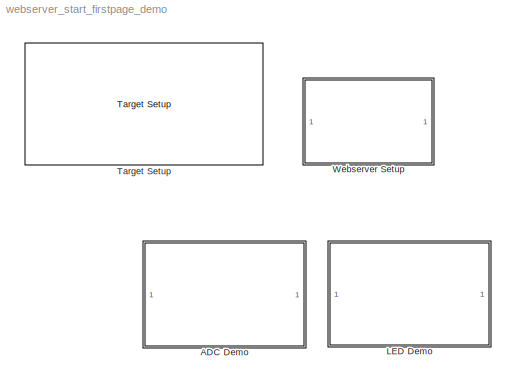
MODEL webserver_start_firstpage_demo
KIND model
CONFIG PreLoadFcn = waijung.modelPreload; % Required for working with Waijung Blockset. Do not remove.
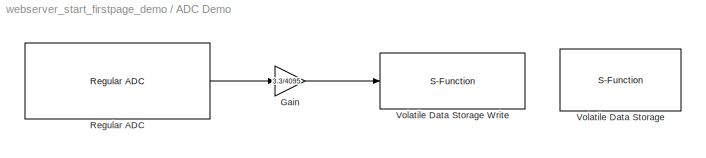
BLOCK [SubSystem] ADC Demo
  FunctionWithSeparateData = off
  MaskHideContents = off
  MinAlgLoopOccurrences = off
  Opaque = off
  Ports = []
  PropExecContextOutsideSubsystem = off
  RTWSystemCode = Auto
  RequestExecContextInheritance = off
BLOCK [Gain] ADC Demo/Gain
  Gain = 3.3/4095
  OutDataType = fixdt(1, 16)
  OutDataTypeMode = Inherit via internal rule
  OutDataTypeStr = Inherit: Inherit via internal rule
  OutScaling = 2^0
  ParamDataTypeStr = Inherit: Inherit via internal rule
  ParameterDataType = fixdt(1, 16)
  ParameterDataTypeMode = Inherit via internal rule
  ParameterScaling = 2^0
  SaturateOnIntegerOverflow = off
BLOCK [Reference] ADC Demo/Regular ADC  REF=stm32f4_adc_lib/Regular ADC
  Ports = [0, 1]
  SourceBlock = stm32f4_adc_lib/Regular ADC
  SourceType = stm32f4_regular_adc
  adcmodule = 1
  blockid = ADCDemoRegularADC
  chsamplingtime = Auto
  chsamplingtimestr = ADC_SampleTime_480Cycles
  cinputportlabel = 0
  coutputportlabel = Out1, Out2
  enablecustomportlabel = off
  outputdatatype = Single
  pinstr = GPIO_Pin_9
  prescaler = 2
  prescalerstr = ADC_Prescaler_Div2
  read_an0 = off
  read_an1 = off
  read_an10 = off
  read_an11 = off
  read_an12 = off
  read_an13 = off
  read_an14 = off
  read_an15 = off
  read_an16 = off
  read_an17 = off
  read_an18 = off
  read_an2 = off
  read_an3 = off
  read_an4 = off
  read_an5 = off
  read_an6 = off
  read_an7 = off
  read_an8 = off
  read_an9 = on
  sampletime = -1
  usedpinarray = [0  0  0  0  0  0  0  0  0  1  0  0  0  0  0  0  0  0  0]
  usedpinidarray = [1]
  usedpinidcount = 1
  usedportidarray = [1]
BLOCK [S-Function] ADC Demo/Volatile Data Storage
  EnableBusSupport = off
  FunctionName = waijung_vdata_storage
  MaskCallbackString = waijung_vdata_storage_callback('storagetype');||waijung_vdata_storage_callback('storagename');|waijung_vdata_storage_callback('initval');|waijung_vdata_storage_callback('varname');||waijung_vdata_storage_callback('initvalstring');|waijung_vdata_storage_callback('webintegration');|waijung_vdata_storage_callback('weboutputformat');|||waijung_vdata_storage_callback('sampletime');|waijung_vdata_storag...<+72ch>  <repeated x4 — deduplicated; at blocks: Volatile Data Storage, Volatile Data Storage1, Volatile Data Storage2, Volatile Data Storage3>
  MaskDescription = This block implements a volatile Data Storage.\n\nWeb CGI varset/varget integratiopn:\nEnable - In webserver application, allow remote access via http.\nDisable - Variable is use in local only.  <repeated x4 — deduplicated; at blocks: Volatile Data Storage, Volatile Data Storage1, Volatile Data Storage2, Volatile Data Storage3>
  MaskDisplay = text(0.5, 0.5, 'Name: adc1\\nType: single','ver','middle','hor','center')
  MaskEnableString = on,on,on,on,off,on,on,on,on,off,on,on,off,off,on
  MaskHelp = web(fullfile(waijungdocroot,'Volatile_Data_Storage.htm'))
  MaskIconFrame = on
  MaskIconOpaque = on
  MaskIconRotate = none
  MaskIconUnits = normalized
  MaskInitialization = waijung_vdata_storage_callback('init');
  MaskPortRotate = default
  MaskPromptString = Storage Type|Define with \"volatile\" keyword|Storage Name (must be a valid variable name)|Initial value (Apply at Power on Reset only)|Variable name|Size (bytes)|Initial value (Apply at Power on Reset only)|Web CGI varget/varset integration|Web CGI varget output format|Web CGI varset callback|Last selected Storage Type|Sample time (sec)|Compiled sample time (sec) in string|BlockID|Type string  <repeated x4 — deduplicated; at blocks: Volatile Data Storage, Volatile Data Storage1, Volatile Data Storage2, Volatile Data Storage3>
  MaskSelfModifiable = on
  MaskStyleString = popup(double|single|uint32|int32|uint16|int16|uint8|int8|string),checkbox,edit,edit,edit,edit,edit,popup(Disable|ReadOnly|Write/ Read|ReadOnly with KeyValuePair|Write/ Read with KeyValuePair),edit,edit,popup(double|single|uint32|int32|uint16|int16|uint8|int8|string),edit,edit,edit,edit  <repeated x4 — deduplicated; at blocks: Volatile Data Storage, Volatile Data Storage1, Volatile Data Storage2, Volatile Data Storage3>
  MaskTabNameString = ,,,,,,,,,,,,,,
  MaskToolTipString = on,on,on,on,on,on,on,on,on,on,on,on,on,on,on
  MaskTunableValueString = off,off,off,off,off,off,off,off,off,off,off,off,off,off,off
  MaskType = waijung_vdata_storage
  MaskValueString = single|off|adc1|0|ADCDemoVolatileDataStorage_adc1|64|'Initial string'|ReadOnly|'%f'|(void*)0|single|-1|0.01|ADCDemoVolatileDataStorage|float
  MaskVarAliasString = ,,,,,,,,,,,,,,
  MaskVariables = storagetype=&1;definevolatile=&2;storagename=&3;initval=@4;varname=&5;buffersize=@6;initvalstring=@7;webintegration=&8;weboutputformat=&9;webcgicallback=&10;laststoragetype=&11;sampletime=@12;sampletimestr=&13;blockid=&14;storagetypestr=&15;  <repeated x4 — deduplicated; at blocks: Volatile Data Storage, Volatile Data Storage1, Volatile Data Storage2, Volatile Data Storage3>
  MaskVisibilityString = on,on,on,on,off,off,off,on,on,off,off,on,off,off,off
  Parameters = storagetype,storagename,initval,varname,buffersize,initvalstring,sampletime,sampletimestr,blockid,storagetypestr
  Ports = []
BLOCK [S-Function] ADC Demo/Volatile Data Storage Write
  EnableBusSupport = off
  FunctionName = waijung_vdata_write
  MaskCallbackString = waijung_vdata_write_callback('storagename');|waijung_vdata_write_callback('varname');|waijung_vdata_write_callback('sampletime');|waijung_vdata_write_callback('sampletimestr');|waijung_vdata_write_callback('blockid');|waijung_vdata_write_callback('storagetype');|
  MaskDescription = This block implements write data to a buffer.
  MaskDisplay = text(0.95, 0.5, 'Buffer: adc1','ver','middle','hor','right');port_label('input',1,'D1(single)')
  MaskEnableString = on,off,on,off,off,on,on
  MaskHelp = web(fullfile(waijungdocroot,'Volatile_Data_Storage_Write.htm'))
  MaskIconFrame = on
  MaskIconOpaque = on
  MaskIconRotate = none
  MaskIconUnits = normalized
  MaskInitialization = waijung_vdata_write_callback('init');
  MaskPortRotate = default
  MaskPromptString = Storage Name|Variable name|Sample time (sec)|Compiled sample time (sec) in string|BlockID|Data type|Data type string
  MaskSelfModifiable = on
  MaskStyleString = popup(adc1|led1|led2|led3),edit,edit,edit,edit,edit,edit
  MaskTabNameString = ,,,,,,
  MaskToolTipString = on,on,on,on,on,on,on
  MaskTunableValueString = off,off,off,off,off,off,off
  MaskType = waijung_vdata_write
  MaskValueString = adc1|ADCDemoVolatileDataStorage_adc1|-1|0.01|ADCDemoVolatileDataStorageWrite|single|float
  MaskVarAliasString = ,,,,,,
  MaskVariables = storagename=&1;varname=&2;sampletime=@3;sampletimestr=&4;blockid=&5;storagetype=&6;storagetypestr=&7;
  MaskVisibilityString = on,off,on,off,off,off,off
  Parameters = storagename,varname,sampletime,sampletimestr,blockid,storagetype,storagetypestr
  Ports = [1]
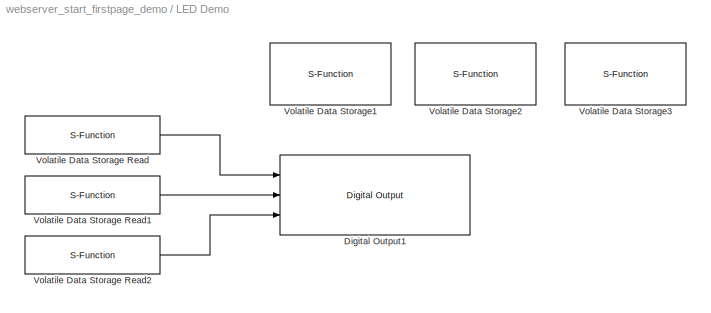
BLOCK [SubSystem] LED Demo
  FunctionWithSeparateData = off
  MaskHideContents = off
  MinAlgLoopOccurrences = off
  Opaque = off
  Ports = []
  PropExecContextOutsideSubsystem = off
  RTWSystemCode = Auto
  RequestExecContextInheritance = off
BLOCK [Reference] LED Demo/Digital Output1  REF=stm32f4_io_lib/Digital Output
  Ports = [3]
  SourceBlock = stm32f4_io_lib/Digital Output
  SourceType = stm32f4_digital_output
  bitbandingstr = \n#define LEDDemoDigitalOutput1_B0 Peripheral_BB(GPIOB->ODR, 0)  /* Output pin */\n#define LEDDemoDigitalOutput1_B7 Peripheral_BB(GPIOB->ODR, 7)  /* Output pin */\n#define LEDDemoDigitalOutput1_B14 Peripheral_BB(GPIOB->ODR, 14)  /* Output pin */
  blockid = LEDDemoDigitalOutput1
  cinputportlabel = In1, In2
  coutputportlabel = 0
  enablecustomportlabel = off
  globalinit = off
  pinstr = GPIO_Pin_0 | GPIO_Pin_7 | GPIO_Pin_14
  port = B
  porttype = Push Pull
  porttypestr = PP
  sampletime = -1
  sampletimestr = 0.01
  speed = 100
  use_bitband = on
  use_pin0 = on
  use_pin1 = off
  use_pin10 = off
  use_pin11 = off
  use_pin12 = off
  use_pin13 = off
  use_pin14 = on
  use_pin15 = off
  use_pin2 = off
  use_pin3 = off
  use_pin4 = off
  use_pin5 = off
  use_pin6 = off
  use_pin7 = on
  use_pin8 = off
  use_pin9 = off
  usedpinarray = [1  0  0  0  0  0  0  1  0  0  0  0  0  0  1  0]
BLOCK [S-Function] LED Demo/Volatile Data Storage Read
  EnableBusSupport = off
  FunctionName = waijung_vdata_read
  MaskCallbackString = waijung_vdata_read_callback('storagename');|waijung_vdata_read_callback('varname');|waijung_vdata_read_callback('sampletime');|waijung_vdata_read_callback('sampletimestr');|waijung_vdata_read_callback('blockid');|waijung_vdata_read_callback('storagetype');|  <repeated x3 — deduplicated; at blocks: Volatile Data Storage Read, Volatile Data Storage Read1, Volatile Data Storage Read2>
  MaskDescription = This block implements read data from a buffer.
  MaskDisplay = text(0.05, 0.5, 'Buffer: led1','ver','middle','hor','left');port_label('output',1,'D1(int32)')
  MaskEnableString = on,off,on,off,off,on,on
  MaskHelp = web(fullfile(waijungdocroot,'Volatile_Data_Storage_Read.htm'))
  MaskIconFrame = on
  MaskIconOpaque = on
  MaskIconRotate = none
  MaskIconUnits = normalized
  MaskInitialization = waijung_vdata_read_callback('init');
  MaskPortRotate = default
  MaskPromptString = Storage Name|Variable name|Sample time (sec)|Compiled sample time (sec) in string|BlockID|Data type|Data type string
  MaskSelfModifiable = on
  MaskStyleString = popup(adc1|led1|led2|led3),edit,edit,edit,edit,edit,edit
  MaskTabNameString = ,,,,,,
  MaskToolTipString = on,on,on,on,on,on,on
  MaskTunableValueString = off,off,off,off,off,off,off
  MaskType = waijung_vdata_read
  MaskValueString = led1|LEDDemoVolatileDataStorage1_led1|-1|0.01|LEDDemoVolatileDataStorageRead|int32|int32_t
  MaskVarAliasString = ,,,,,,
  MaskVariables = storagename=&1;varname=&2;sampletime=@3;sampletimestr=&4;blockid=&5;storagetype=&6;storagetypestr=&7;
  MaskVisibilityString = on,off,on,off,off,off,off
  Parameters = storagename,varname,sampletime,sampletimestr,blockid,storagetype,storagetypestr
  Ports = [0, 1]
BLOCK [S-Function] LED Demo/Volatile Data Storage Read1
  EnableBusSupport = off
  FunctionName = waijung_vdata_read
  MaskDescription = This block implements read data from a buffer.
  MaskDisplay = text(0.05, 0.5, 'Buffer: led2','ver','middle','hor','left');port_label('output',1,'D1(int32)')
  MaskEnableString = on,off,on,off,off,on,on
  MaskHelp = web(fullfile(waijungdocroot,'Volatile_Data_Storage_Read.htm'))
  MaskIconFrame = on
  MaskIconOpaque = on
  MaskIconRotate = none
  MaskIconUnits = normalized
  MaskInitialization = waijung_vdata_read_callback('init');
  MaskPortRotate = default
  MaskPromptString = Storage Name|Variable name|Sample time (sec)|Compiled sample time (sec) in string|BlockID|Data type|Data type string
  MaskSelfModifiable = on
  MaskStyleString = popup(adc1|led1|led2|led3),edit,edit,edit,edit,edit,edit
  MaskTabNameString = ,,,,,,
  MaskToolTipString = on,on,on,on,on,on,on
  MaskTunableValueString = off,off,off,off,off,off,off
  MaskType = waijung_vdata_read
  MaskValueString = led2|LEDDemoVolatileDataStorage2_led2|-1|0.01|LEDDemoVolatileDataStorageRead1|int32|int32_t
  MaskVarAliasString = ,,,,,,
  MaskVariables = storagename=&1;varname=&2;sampletime=@3;sampletimestr=&4;blockid=&5;storagetype=&6;storagetypestr=&7;
  MaskVisibilityString = on,off,on,off,off,off,off
  Parameters = storagename,varname,sampletime,sampletimestr,blockid,storagetype,storagetypestr
  Ports = [0, 1]
BLOCK [S-Function] LED Demo/Volatile Data Storage Read2
  EnableBusSupport = off
  FunctionName = waijung_vdata_read
  MaskDescription = This block implements read data from a buffer.
  MaskDisplay = text(0.05, 0.5, 'Buffer: led3','ver','middle','hor','left');port_label('output',1,'D1(int32)')
  MaskEnableString = on,off,on,off,off,on,on
  MaskHelp = web(fullfile(waijungdocroot,'Volatile_Data_Storage_Read.htm'))
  MaskIconFrame = on
  MaskIconOpaque = on
  MaskIconRotate = none
  MaskIconUnits = normalized
  MaskInitialization = waijung_vdata_read_callback('init');
  MaskPortRotate = default
  MaskPromptString = Storage Name|Variable name|Sample time (sec)|Compiled sample time (sec) in string|BlockID|Data type|Data type string
  MaskSelfModifiable = on
  MaskStyleString = popup(adc1|led1|led2|led3),edit,edit,edit,edit,edit,edit
  MaskTabNameString = ,,,,,,
  MaskToolTipString = on,on,on,on,on,on,on
  MaskTunableValueString = off,off,off,off,off,off,off
  MaskType = waijung_vdata_read
  MaskValueString = led3|LEDDemoVolatileDataStorage3_led3|-1|0.01|LEDDemoVolatileDataStorageRead2|int32|int32_t
  MaskVarAliasString = ,,,,,,
  MaskVariables = storagename=&1;varname=&2;sampletime=@3;sampletimestr=&4;blockid=&5;storagetype=&6;storagetypestr=&7;
  MaskVisibilityString = on,off,on,off,off,off,off
  Parameters = storagename,varname,sampletime,sampletimestr,blockid,storagetype,storagetypestr
  Ports = [0, 1]
BLOCK [S-Function] LED Demo/Volatile Data Storage1
  EnableBusSupport = off
  FunctionName = waijung_vdata_storage
  MaskDisplay = text(0.5, 0.5, 'Name: led1\\nType: int32','ver','middle','hor','center')
  MaskEnableString = on,on,on,on,off,on,on,on,on,off,on,on,off,off,on
  MaskHelp = web(fullfile(waijungdocroot,'Volatile_Data_Storage.htm'))
  MaskIconFrame = on
  MaskIconOpaque = on
  MaskIconRotate = none
  MaskIconUnits = normalized
  MaskInitialization = waijung_vdata_storage_callback('init');
  MaskPortRotate = default
  MaskSelfModifiable = on
  MaskTabNameString = ,,,,,,,,,,,,,,
  MaskToolTipString = on,on,on,on,on,on,on,on,on,on,on,on,on,on,on
  MaskTunableValueString = off,off,off,off,off,off,off,off,off,off,off,off,off,off,off
  MaskType = waijung_vdata_storage
  MaskValueString = int32|off|led1|0|LEDDemoVolatileDataStorage1_led1|64|'Initial string'|Write/ Read|'%d'|(void*)0|int32|-1|0.01|LEDDemoVolatileDataStorage1|int32_t
  MaskVarAliasString = ,,,,,,,,,,,,,,
  MaskVisibilityString = on,on,on,on,off,off,off,on,on,off,off,on,off,off,off
  Parameters = storagetype,storagename,initval,varname,buffersize,initvalstring,sampletime,sampletimestr,blockid,storagetypestr
  Ports = []
BLOCK [S-Function] LED Demo/Volatile Data Storage2
  EnableBusSupport = off
  FunctionName = waijung_vdata_storage
  MaskDisplay = text(0.5, 0.5, 'Name: led2\\nType: int32','ver','middle','hor','center')
  MaskEnableString = on,on,on,on,off,on,on,on,on,off,on,on,off,off,on
  MaskHelp = web(fullfile(waijungdocroot,'Volatile_Data_Storage.htm'))
  MaskIconFrame = on
  MaskIconOpaque = on
  MaskIconRotate = none
  MaskIconUnits = normalized
  MaskInitialization = waijung_vdata_storage_callback('init');
  MaskPortRotate = default
  MaskSelfModifiable = on
  MaskTabNameString = ,,,,,,,,,,,,,,
  MaskToolTipString = on,on,on,on,on,on,on,on,on,on,on,on,on,on,on
  MaskTunableValueString = off,off,off,off,off,off,off,off,off,off,off,off,off,off,off
  MaskType = waijung_vdata_storage
  MaskValueString = int32|off|led2|0|LEDDemoVolatileDataStorage2_led2|64|'Initial string'|Write/ Read|'%d'|(void*)0|int32|-1|0.01|LEDDemoVolatileDataStorage2|int32_t
  MaskVarAliasString = ,,,,,,,,,,,,,,
  MaskVisibilityString = on,on,on,on,off,off,off,on,on,off,off,on,off,off,off
  Parameters = storagetype,storagename,initval,varname,buffersize,initvalstring,sampletime,sampletimestr,blockid,storagetypestr
  Ports = []
BLOCK [S-Function] LED Demo/Volatile Data Storage3
  EnableBusSupport = off
  FunctionName = waijung_vdata_storage
  MaskDisplay = text(0.5, 0.5, 'Name: led3\\nType: int32','ver','middle','hor','center')
  MaskEnableString = on,on,on,on,off,on,on,on,on,off,on,on,off,off,on
  MaskHelp = web(fullfile(waijungdocroot,'Volatile_Data_Storage.htm'))
  MaskIconFrame = on
  MaskIconOpaque = on
  MaskIconRotate = none
  MaskIconUnits = normalized
  MaskInitialization = waijung_vdata_storage_callback('init');
  MaskPortRotate = default
  MaskSelfModifiable = on
  MaskTabNameString = ,,,,,,,,,,,,,,
  MaskToolTipString = on,on,on,on,on,on,on,on,on,on,on,on,on,on,on
  MaskTunableValueString = off,off,off,off,off,off,off,off,off,off,off,off,off,off,off
  MaskType = waijung_vdata_storage
  MaskValueString = int32|off|led3|0|LEDDemoVolatileDataStorage3_led3|64|'Initial string'|Write/ Read|'%d'|(void*)0|int32|-1|0.01|LEDDemoVolatileDataStorage3|int32_t
  MaskVarAliasString = ,,,,,,,,,,,,,,
  MaskVisibilityString = on,on,on,on,off,off,off,on,on,off,off,on,off,off,off
  Parameters = storagetype,storagename,initval,varname,buffersize,initvalstring,sampletime,sampletimestr,blockid,storagetypestr
  Ports = []
BLOCK [Reference] Target Setup  REF=stm32f4_device_config_lib/Target Setup
  Ports = []
  Priority = 100
  SourceBlock = stm32f4_device_config_lib/Target Setup
  SourceType = stm32f4_target_setup
  assemblercontrolstr = $(patsubst %, -I%, .) -mcpu=cortex-m4 -mthumb -mthumb-interwork -mfloat-abi=hard -mfpu=fpv4-sp-d16 -ffast-math -Wall -Wextra -Ofast -Wa,-amhls=$(<:.s=.lst) -D__STACK_SIZE=$(STACK_SIZE) -D__HEAP_SIZE=$(HEAP_SIZE)
  blockid = TargetSetup
  clockconfig = HSEOSC-8MHz
  compiler = GNU ARM
  compilercontrolstr = $(patsubst %, -I%, .) -mcpu=cortex-m4 -mthumb -mthumb-interwork -mfloat-abi=hard -mfpu=fpv4-sp-d16 -ffast-math -Wall -Wextra -Ofast
  editctrlstr = on
  enableautocompiledownload = on
  execprofile = None
  flashlength = 2048k
  flashorigin = 0x8000000
  fullchiperase = on
  hclk = 180000000
  heapsize = 0x2000
  hseval = 8000000
  lastprofileruart = 1
  linkercontrolstr = -T$(LD_SCRIPT) -g -Wl,-Map=$(MAP),--cref,--no-warn-mismatch -mcpu=cortex-m4 -mthumb -mthumb-interwork -mfloat-abi=hard -mfpu=fpv4-sp-d16 -specs=nosys.specs
  manualsetsampletime = off
  mcu = STM32F429ZI (LQFP144)
  mcustr = STM32F429ZI
  previous_compiler = GNU ARM
  profilerbaud = 115200
  profilerinitstr = 0.01,180000000,1800000,115200,0
  profilertxpin = D8
  profileruart = 1
  programmerinterface = ST-Link
  ramlength = 192k
  ramorigin = 0x20000000
  runafterdownload = on
  sampletime = 0.01
  showmemoryconfiguration = on
  stacksize = 0x2000
  system_stm32f4xx_c_path = <path>
  systickreloadvalue = 1800000
  useextram = off
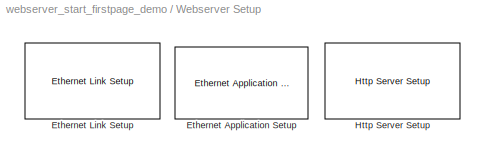
BLOCK [SubSystem] Webserver Setup
  FunctionWithSeparateData = off
  MaskHideContents = off
  MinAlgLoopOccurrences = off
  Opaque = off
  Ports = []
  PropExecContextOutsideSubsystem = off
  RTWSystemCode = Auto
  RequestExecContextInheritance = off
BLOCK [Reference] Webserver Setup/Ethernet Application Setup  REF=waijung_webserver/Ethernet Application Setup
  Ports = []
  SourceBlock = waijung_webserver/Ethernet Application Setup
  SourceType = waijung_ethernet_app
  blockid = WebserverSetupEthernetApplicationSetup
  compat = 0
  conf = Setup
  dhcp = off
  gateway = 192.168.1.1
  inputportlabel = {}
  inputporttype = []
  inputportwidth = []
  ipaddress = 192.168.1.42
  macaddress = 02-00-00-00-00-00
  netmask = 255.255.255.0
  optionstring = [\"Dummy\",\"192\",\"168\",\"1\",\"42\",\"255\",\"255\",\"255\",\"0\",\"192\",\"168\",\"1\",\"1\",\"02\",\"00\",\"00\",\"00\",\"00\",\"00\",\"off\",\"50\"]
  outputportlabel = {}
  outputporttype = []
  outputportwidth = []
  portpinstr = 0
  sampletime = -1
  timerscaler = 50
BLOCK [Reference] Webserver Setup/Ethernet Link Setup  REF=waijung_webserver/Ethernet Link Setup
  Ports = []
  SourceBlock = waijung_webserver/Ethernet Link Setup
  SourceType = waijung_ethernet_inf
  autonegotiation = Disable
  blockid = WebserverSetupEthernetLinkSetup
  chipaddress = 1
  compat = 0
  conf = Setup
  duplex = Full
  inputportlabel = {}
  inputporttype = []
  inputportwidth = []
  interfacepin = Profile #2
  optionstring = [\"xxx\",\"on\",\"on\",\"on\",\"off\",\"off\",\"off\",\"on\",\"off\",\"off\",\"off\",\"on\",\"on\",\"off\",\"on\",\"off\",\"off\",\"off\",\"off\",\"off\",\"on\",\"on\",\"on\",\"on\",\"off\",\"off\",\"on\",\"on\",\"A\",\"0\",\"A\",\"1\",\"A\",\"2\",\"A\",\"3\",\"A\",\"7\",\"B\",\"0\",\"B\",\"1\",\"N\",\"ot used\",\"E\",\"2\",\"B\",\"10\",\"G\",\"11\",\"G\",\"13\",\"B\",\"13\",\"C\",\"1\",\"C\",\"2\...<+80ch>
  outputportlabel = {}
  outputporttype = []
  outputportwidth = []
  pin_col = H3
  pin_crs = H2
  pin_dv = A7
  pin_mdc = C1
  pin_mdio = A2
  pin_pps = Not used
  pin_rxclk = A1
  pin_rxd0 = C4
  pin_rxd1 = C5
  pin_rxd2 = H6
  pin_rxd3 = H7
  pin_rxer = B10
  pin_txclk = C3
  pin_txd0 = B12
  pin_txd1 = G14
  pin_txd2 = C2
  pin_txd3 = E2
  pin_txen = B11
  portpinstr = H2,A1,A2,H3,A7,H6,H7,E2,B10,B11,B12,G14,C1,C2,C3,C4,C5
  sampletime = -1
  speed = 10
  wj_interfacetype = MII
BLOCK [Reference] Webserver Setup/Http Server Setup  REF=waijung_webserver/Http Server Setup
  Ports = []
  SourceBlock = waijung_webserver/Http Server Setup
  SourceType = waijung_httpserver_setup
  blockid = WebserverSetupHttpServerSetup
  compat = 0
  conf = Setup
  debugport = Disable
  iap = Disable
  inputportlabel = {}
  inputporttype = []
  inputportwidth = []
  mempool = 8
  optionstring = [\"80\",\"0\",\"0\",\"Disable\",\"Disable\",\"8\",\"17.03a\",\"\",\"\",\"\",\"adc1\",\"single\",\"ADCDemoVolatileDataStorage_adc1\",\"1\",\"0\",\"0\",\"(void*)0\",\"%f\",\"\",\"\",\"led1\",\"int32\",\"LEDDemoVolatileDataStorage1_led1\",\"1\",\"1\",\"0\",\"(void*)0\",\"%d\",\"\",\"\",\"led2\",\"int32\",\"LEDDemoVolatileDataStorage2_led2\",\"1\",\"1\",\"0\",\"(void*)0\",\"%d\",\"\",\"\",\"led3\",\"i...<+92ch>
  outputportlabel = {}
  outputporttype = []
  outputportwidth = []
  port = 80
  portpinstr = 0
  sampletime = -1
  sqlite = Disable
  ssl = Disable
LINE ADC Demo/Gain:1 -> ADC Demo/Volatile Data Storage Write:1
LINE ADC Demo/Regular ADC:1 -> ADC Demo/Gain:1
LINE LED Demo/Volatile Data Storage Read1:1 -> LED Demo/Digital Output1:2
LINE LED Demo/Volatile Data Storage Read2:1 -> LED Demo/Digital Output1:3
LINE LED Demo/Volatile Data Storage Read:1 -> LED Demo/Digital Output1:1
note: 1 file-system path scrubbed to <path> (not preserved elsewhere — flat text is the only slx artifact)
